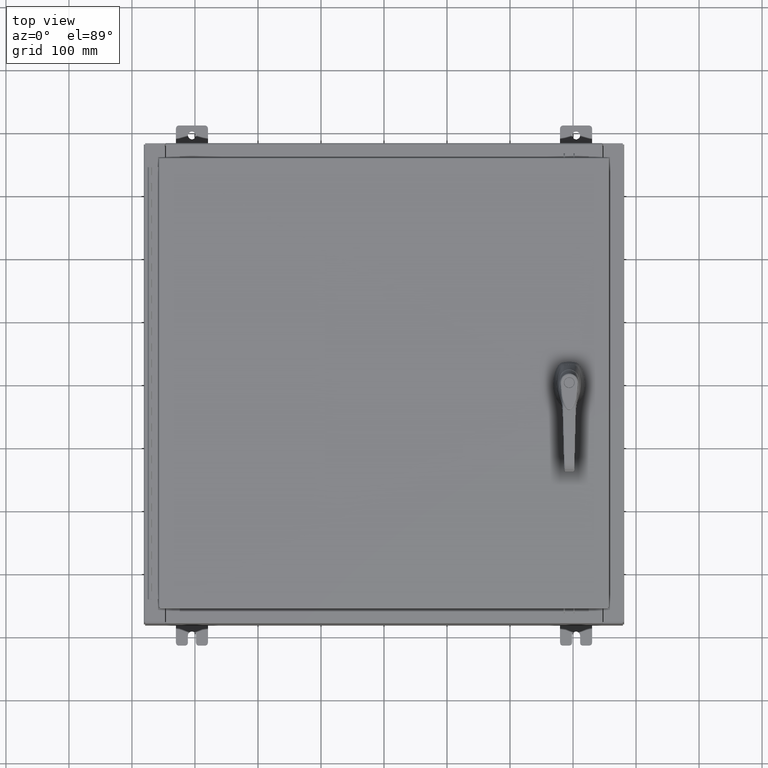
[diagram: clean part render]
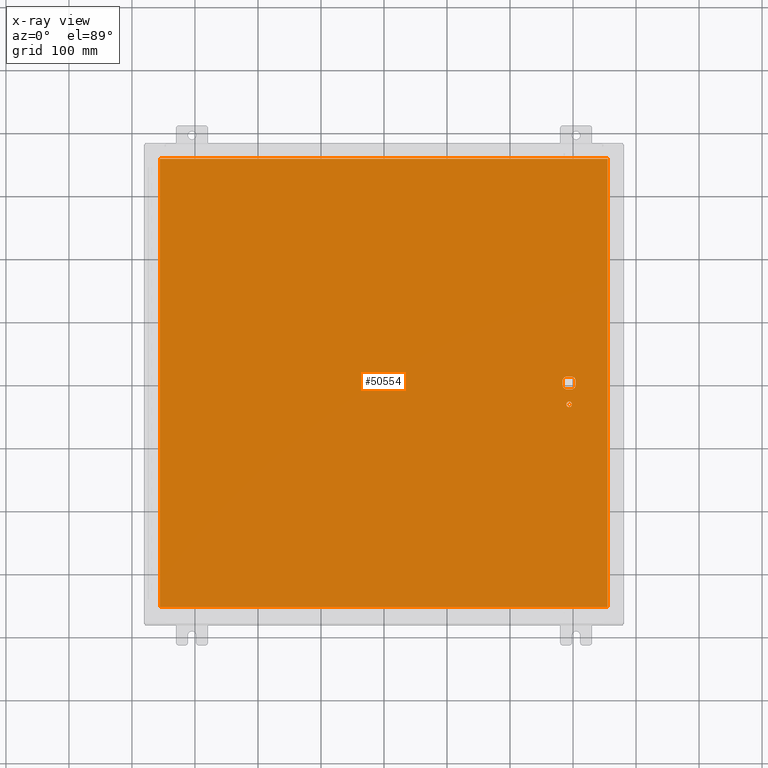
[diagram: x-ray — body ghosted, one internal face saturated and labeled with its STEP entity id]
A machine part, top view, then the same camera in x-ray: the body is ghosted and one INTERNAL B-rep face — a face not visible from any outside direction — is saturated and labeled: STEP entity #50554.
In plain terms, the highlighted planar face has unit normal (0, 0, -1).
Its self-contained STEP definition (entity closure, byte-faithful):
#1033 = VERTEX_POINT ( 'NONE', #87759 ) ;
#1653 = LINE ( 'NONE', #54475, #20173 ) ;
#2246 = ORIENTED_EDGE ( 'NONE', *, *, #98586, .T. ) ;
#3369 = CARTESIAN_POINT ( 'NONE',  ( 11.17500000000007500, 0.2002273707563075900, -0.07470000000000003000 ) ) ;
#3869 = ORIENTED_EDGE ( 'NONE', *, *, #37152, .F. ) ;
#4384 = CIRCLE ( 'NONE', #68116, 0.4499999999999168000 ) ;
#6330 = EDGE_CURVE ( 'NONE', #28375, #93488, #9081, .T. ) ;
#7350 = DIRECTION ( 'NONE',  ( -0.0000000000000000000, -0.0000000000000000000, 1.000000000000000000 ) ) ;
#7360 = CARTESIAN_POINT ( 'NONE',  ( 11.77822737075631200, 0.4029999999999250300, -0.07470000000000003000 ) ) ;
#7640 = CIRCLE ( 'NONE', #8975, 0.4499999999999168000 ) ;
#7692 = EDGE_CURVE ( 'NONE', #75473, #93488, #28818, .T. ) ;
#8975 = AXIS2_PLACEMENT_3D ( 'NONE', #49143, #112978, #58325 ) ;
#9081 = CIRCLE ( 'NONE', #118172, 0.4499999999999168000 ) ;
#9617 = DIRECTION ( 'NONE',  ( -1.000000000000000000, 0.0000000000000000000, 0.0000000000000000000 ) ) ;
#12670 = EDGE_LOOP ( 'NONE', ( #2246, #30306 ) ) ;
#12706 = ORIENTED_EDGE ( 'NONE', *, *, #100614, .F. ) ;
#12917 = FACE_BOUND ( 'NONE', #54664, .T. ) ;
#15391 = EDGE_CURVE ( 'NONE', #51282, #28979, #58626, .T. ) ;
#18384 = DIRECTION ( 'NONE',  ( -0.0000000000000000000, -0.0000000000000000000, 1.000000000000000000 ) ) ;
#19371 = ORIENTED_EDGE ( 'NONE', *, *, #15391, .T. ) ;
#20173 = VECTOR ( 'NONE', #118309, 39.37007874015748100 ) ;
#20903 = CIRCLE ( 'NONE', #89784, 0.1715000000000011500 ) ;
#27686 = CARTESIAN_POINT ( 'NONE',  ( 11.57800000000000100, -1.338000000000000100, -0.07470000000000003000 ) ) ;
#27858 = VERTEX_POINT ( 'NONE', #98049 ) ;
#28173 = CARTESIAN_POINT ( 'NONE',  ( 11.57800000000000100, 0.0000000000000000000, -0.07470000000000003000 ) ) ;
#28375 = VERTEX_POINT ( 'NONE', #98668 ) ;
#28818 = LINE ( 'NONE', #42638, #47411 ) ;
#28979 = VERTEX_POINT ( 'NONE', #71275 ) ;
#30306 = ORIENTED_EDGE ( 'NONE', *, *, #81585, .T. ) ;
#30858 = EDGE_LOOP ( 'NONE', ( #77130, #83341, #12706, #3869 ) ) ;
#31313 = ORIENTED_EDGE ( 'NONE', *, *, #7692, .F. ) ;
#32973 = DIRECTION ( 'NONE',  ( -0.0000000000000000000, -0.0000000000000000000, 1.000000000000000000 ) ) ;
#33816 = CARTESIAN_POINT ( 'NONE',  ( 11.40650000000000100, -1.338000000000000100, -0.07470000000000003000 ) ) ;
#34294 = ORIENTED_EDGE ( 'NONE', *, *, #102957, .T. ) ;
#35478 = ORIENTED_EDGE ( 'NONE', *, *, #44699, .T. ) ;
#36879 = DIRECTION ( 'NONE',  ( -1.000000000000000000, 0.0000000000000000000, 0.0000000000000000000 ) ) ;
#36906 = VERTEX_POINT ( 'NONE', #113743 ) ;
#37123 = FACE_OUTER_BOUND ( 'NONE', #30858, .T. ) ;
#37152 = EDGE_CURVE ( 'NONE', #62591, #1033, #112564, .T. ) ;
#37193 = DIRECTION ( 'NONE',  ( 1.000000000000000000, -0.0000000000000000000, -0.0000000000000000000 ) ) ;
#37348 = DIRECTION ( 'NONE',  ( -1.000000000000000000, -5.329070518200740300E-015, 0.0000000000000000000 ) ) ;
#37371 = CARTESIAN_POINT ( 'NONE',  ( -13.99029999999999800, 14.00629999999999600, -0.07470000000000019700 ) ) ;
#42010 = ORIENTED_EDGE ( 'NONE', *, *, #60193, .T. ) ;
#42638 = CARTESIAN_POINT ( 'NONE',  ( 11.98099999999992900, 6.538620706741755000E-014, -0.07470000000000003000 ) ) ;
#43458 = CARTESIAN_POINT ( 'NONE',  ( 13.99030000000000100, 14.00629999999999400, -0.07469999999999910000 ) ) ;
#44699 = EDGE_CURVE ( 'NONE', #64668, #51282, #89134, .T. ) ;
#45551 = VERTEX_POINT ( 'NONE', #79895 ) ;
#45813 = DIRECTION ( 'NONE',  ( 0.0000000000000000000, 0.0000000000000000000, -1.000000000000000000 ) ) ;
#46565 = DIRECTION ( 'NONE',  ( 0.0000000000000000000, -1.000000000000000000, 0.0000000000000000000 ) ) ;
#47411 = VECTOR ( 'NONE', #70170, 39.37007874015748100 ) ;
#49067 = CARTESIAN_POINT ( 'NONE',  ( 0.0000000000000000000, -0.4029999999999252000, -0.07470000000000003000 ) ) ;
#49110 = EDGE_CURVE ( 'NONE', #36906, #62591, #1653, .T. ) ;
#49143 = CARTESIAN_POINT ( 'NONE',  ( 11.57800000000000100, 0.0000000000000000000, -0.07470000000000003000 ) ) ;
#50554 = ADVANCED_FACE ( 'NONE', ( #107134, #37123, #12917 ), #118468, .T. ) ;
#51282 = VERTEX_POINT ( 'NONE', #3369 ) ;
#52667 = DIRECTION ( 'NONE',  ( -1.000000000000000000, -0.0000000000000000000, -0.0000000000000000000 ) ) ;
#52911 = VECTOR ( 'NONE', #117040, 39.37007874015748100 ) ;
#54119 = VERTEX_POINT ( 'NONE', #7360 ) ;
#54475 = CARTESIAN_POINT ( 'NONE',  ( 13.99030000000000100, -14.00630000000000300, -0.07470000000000019700 ) ) ;
#54664 = EDGE_LOOP ( 'NONE', ( #58554, #31313, #42010, #34294, #35478, #19371, #90477, #107230 ) ) ;
#57994 = VECTOR ( 'NONE', #46565, 39.37007874015748100 ) ;
#58325 = DIRECTION ( 'NONE',  ( -1.000000000000000000, -1.776356839400246700E-015, 0.0000000000000000000 ) ) ;
#58554 = ORIENTED_EDGE ( 'NONE', *, *, #6330, .T. ) ;
#58626 = LINE ( 'NONE', #62324, #52911 ) ;
#59175 = AXIS2_PLACEMENT_3D ( 'NONE', #82092, #45813, #109659 ) ;
#59245 = LINE ( 'NONE', #37371, #57994 ) ;
#60193 = EDGE_CURVE ( 'NONE', #75473, #54119, #4384, .T. ) ;
#61951 = EDGE_CURVE ( 'NONE', #69199, #36906, #89777, .T. ) ;
#61958 = CARTESIAN_POINT ( 'NONE',  ( 11.57800000000000100, -1.338000000000000100, -0.07470000000000003000 ) ) ;
#62250 = VECTOR ( 'NONE', #76561, 39.37007874015748100 ) ;
#62324 = CARTESIAN_POINT ( 'NONE',  ( 11.17500000000007500, 0.0000000000000000000, -0.07470000000000003000 ) ) ;
#62591 = VERTEX_POINT ( 'NONE', #74568 ) ;
#62907 = VERTEX_POINT ( 'NONE', #33816 ) ;
#64668 = VERTEX_POINT ( 'NONE', #114500 ) ;
#66194 = VECTOR ( 'NONE', #9617, 39.37007874015748100 ) ;
#68116 = AXIS2_PLACEMENT_3D ( 'NONE', #87660, #32973, #96843 ) ;
#69199 = VERTEX_POINT ( 'NONE', #84644 ) ;
#70023 = AXIS2_PLACEMENT_3D ( 'NONE', #27686, #91582, #36879 ) ;
#70170 = DIRECTION ( 'NONE',  ( 5.457491617345625000E-015, -1.000000000000000000, 0.0000000000000000000 ) ) ;
#71142 = DIRECTION ( 'NONE',  ( -1.000000000000000000, 0.0000000000000000000, 0.0000000000000000000 ) ) ;
#71275 = CARTESIAN_POINT ( 'NONE',  ( 11.17500000000007500, -0.2002273707563079800, -0.07470000000000003000 ) ) ;
#72631 = EDGE_CURVE ( 'NONE', #28979, #27858, #7640, .T. ) ;
#73040 = CARTESIAN_POINT ( 'NONE',  ( 11.57800000000000100, 0.0000000000000000000, -0.07470000000000003000 ) ) ;
#74568 = CARTESIAN_POINT ( 'NONE',  ( 13.99030000000000100, 14.00629999999999400, -0.07470000000000000300 ) ) ;
#75473 = VERTEX_POINT ( 'NONE', #81097 ) ;
#76561 = DIRECTION ( 'NONE',  ( 1.000000000000000000, 0.0000000000000000000, 0.0000000000000000000 ) ) ;
#77130 = ORIENTED_EDGE ( 'NONE', *, *, #49110, .F. ) ;
#79895 = CARTESIAN_POINT ( 'NONE',  ( 11.74950000000000300, -1.338000000000000100, -0.07470000000000003000 ) ) ;
#81097 = CARTESIAN_POINT ( 'NONE',  ( 11.98099999999992900, 0.2002273707563075900, -0.07470000000000003000 ) ) ;
#81585 = EDGE_CURVE ( 'NONE', #62907, #45551, #20903, .T. ) ;
#81926 = EDGE_CURVE ( 'NONE', #27858, #28375, #86564, .T. ) ;
#82092 = CARTESIAN_POINT ( 'NONE',  ( 0.0000000000000000000, 0.0000000000000000000, -0.07470000000000000300 ) ) ;
#82177 = CARTESIAN_POINT ( 'NONE',  ( 0.0000000000000000000, 0.4029999999999252000, -0.07470000000000003000 ) ) ;
#82211 = DIRECTION ( 'NONE',  ( -1.000000000000000000, -1.776356839400246700E-015, 0.0000000000000000000 ) ) ;
#83341 = ORIENTED_EDGE ( 'NONE', *, *, #61951, .F. ) ;
#84644 = CARTESIAN_POINT ( 'NONE',  ( -13.99029999999999800, -14.00630000000000100, -0.07470000000000000300 ) ) ;
#84838 = AXIS2_PLACEMENT_3D ( 'NONE', #28173, #92053, #37348 ) ;
#86564 = LINE ( 'NONE', #49067, #62250 ) ;
#87660 = CARTESIAN_POINT ( 'NONE',  ( 11.57800000000000100, 0.0000000000000000000, -0.07470000000000003000 ) ) ;
#87759 = CARTESIAN_POINT ( 'NONE',  ( -13.99029999999999800, 14.00629999999999400, -0.07470000000000000300 ) ) ;
#89134 = CIRCLE ( 'NONE', #84838, 0.4499999999999168000 ) ;
#89777 = LINE ( 'NONE', #101058, #114061 ) ;
#89784 = AXIS2_PLACEMENT_3D ( 'NONE', #61958, #7350, #71142 ) ;
#90477 = ORIENTED_EDGE ( 'NONE', *, *, #72631, .T. ) ;
#90506 = LINE ( 'NONE', #82177, #66194 ) ;
#91582 = DIRECTION ( 'NONE',  ( -0.0000000000000000000, -0.0000000000000000000, 1.000000000000000000 ) ) ;
#92053 = DIRECTION ( 'NONE',  ( -0.0000000000000000000, -0.0000000000000000000, 1.000000000000000000 ) ) ;
#93488 = VERTEX_POINT ( 'NONE', #101362 ) ;
#94679 = CIRCLE ( 'NONE', #70023, 0.1715000000000011500 ) ;
#96843 = DIRECTION ( 'NONE',  ( -1.000000000000000000, -5.329070518200740300E-015, 0.0000000000000000000 ) ) ;
#98049 = CARTESIAN_POINT ( 'NONE',  ( 11.37777262924369200, -0.4029999999999250300, -0.07470000000000003000 ) ) ;
#98586 = EDGE_CURVE ( 'NONE', #45551, #62907, #94679, .T. ) ;
#98668 = CARTESIAN_POINT ( 'NONE',  ( 11.77822737075631200, -0.4029999999999252000, -0.07470000000000003000 ) ) ;
#100614 = EDGE_CURVE ( 'NONE', #1033, #69199, #59245, .T. ) ;
#101058 = CARTESIAN_POINT ( 'NONE',  ( -13.99029999999999200, -14.00630000000000300, -0.07469999999999692200 ) ) ;
#101362 = CARTESIAN_POINT ( 'NONE',  ( 11.98099999999992900, -0.2002273707563067300, -0.07470000000000003000 ) ) ;
#102957 = EDGE_CURVE ( 'NONE', #54119, #64668, #90506, .T. ) ;
#107134 = FACE_BOUND ( 'NONE', #12670, .T. ) ;
#107230 = ORIENTED_EDGE ( 'NONE', *, *, #81926, .T. ) ;
#109659 = DIRECTION ( 'NONE',  ( -1.000000000000000000, 0.0000000000000000000, -0.0000000000000000000 ) ) ;
#109704 = VECTOR ( 'NONE', #52667, 39.37007874015748100 ) ;
#112564 = LINE ( 'NONE', #43458, #109704 ) ;
#112978 = DIRECTION ( 'NONE',  ( -0.0000000000000000000, -0.0000000000000000000, 1.000000000000000000 ) ) ;
#113743 = CARTESIAN_POINT ( 'NONE',  ( 13.99030000000000100, -14.00630000000000300, -0.07470000000000000300 ) ) ;
#114061 = VECTOR ( 'NONE', #37193, 39.37007874015748100 ) ;
#114500 = CARTESIAN_POINT ( 'NONE',  ( 11.37777262924369200, 0.4029999999999252000, -0.07470000000000003000 ) ) ;
#117040 = DIRECTION ( 'NONE',  ( 0.0000000000000000000, -1.000000000000000000, 0.0000000000000000000 ) ) ;
#118172 = AXIS2_PLACEMENT_3D ( 'NONE', #73040, #18384, #82211 ) ;
#118309 = DIRECTION ( 'NONE',  ( 0.0000000000000000000, 1.000000000000000000, 0.0000000000000000000 ) ) ;
#118468 = PLANE ( 'NONE',  #59175 ) ;